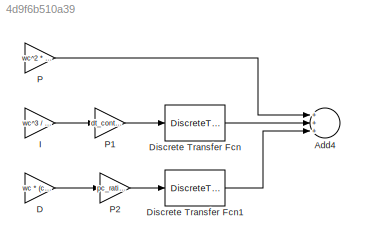
MODEL slx_4d9f6b510a39
KIND model
CONFIG AbsTol = auto
CONFIG EnableMultiTasking = off
CONFIG FixedStep = auto
CONFIG MaxStep = auto
CONFIG MinStep = auto
CONFIG RelTol = 1e-3
CONFIG SampleTimeConstraint = Unconstrained
CONFIG Solver = VariableStepAuto
CONFIG SolverName = VariableStepAuto
CONFIG StartTime = 0.0
CONFIG StopTime = 10.0
BLOCK [Sum] Add4
  InputSameDT = off
  Inputs = +++
  OutDataTypeStr = Inherit: Inherit via internal rule
  Ports = [3, 1]
  SaturateOnIntegerOverflow = off
BLOCK [Gain] D
  Gain = wc * (cz_ratio^2 * pc_ratio^2 - 2 * cz_ratio * pc_ratio + 1)  / (cz_ratio^2 * pc_ratio^2 * PARAMS.mu_V_theta_dot)
  OutDataTypeStr = Inherit: Inherit via internal rule
  ParamDataTypeStr = Inherit: Inherit via internal rule
  SaturateOnIntegerOverflow = off
BLOCK [DiscreteTransferFcn] Discrete Transfer Fcn
  Denominator = [1 -1]
  InputPortMap = u0
  Numerator = [1 1]
  Ports = [1, 1]
BLOCK [DiscreteTransferFcn] Discrete Transfer Fcn1
  Denominator = [(2 + pc_ratio * wc * dt_control) (-2 + pc_ratio * wc* dt_control) ]
  InputPortMap = u0
  Numerator = [1 -1]
  Ports = [1, 1]
BLOCK [Gain] I
  Gain = wc^3 / PARAMS.mu_V_theta_dot / cz_ratio^2
  OutDataTypeStr = Inherit: Inherit via internal rule
  ParamDataTypeStr = Inherit: Inherit via internal rule
  SaturateOnIntegerOverflow = off
BLOCK [Gain] P
  Gain = wc^2 * (2 * cz_ratio * pc_ratio - 1) / (cz_ratio^2 * pc_ratio * PARAMS.mu_V_theta_dot)
  OutDataTypeStr = Inherit: Inherit via internal rule
  ParamDataTypeStr = Inherit: Inherit via internal rule
  SaturateOnIntegerOverflow = off
BLOCK [Gain] P1
  Gain = dt_control/2
  OutDataTypeStr = Inherit: Inherit via internal rule
  ParamDataTypeStr = Inherit: Inherit via internal rule
  SaturateOnIntegerOverflow = off
BLOCK [Gain] P2
  Gain = pc_ratio * wc * 2
  OutDataTypeStr = Inherit: Inherit via internal rule
  ParamDataTypeStr = Inherit: Inherit via internal rule
  SaturateOnIntegerOverflow = off
LINE D:1 -> P2:1
LINE Discrete Transfer Fcn1:1 -> Add4:3
LINE Discrete Transfer Fcn:1 -> Add4:2
LINE I:1 -> P1:1
LINE P1:1 -> Discrete Transfer Fcn:1
LINE P2:1 -> Discrete Transfer Fcn1:1
LINE P:1 -> Add4:1
